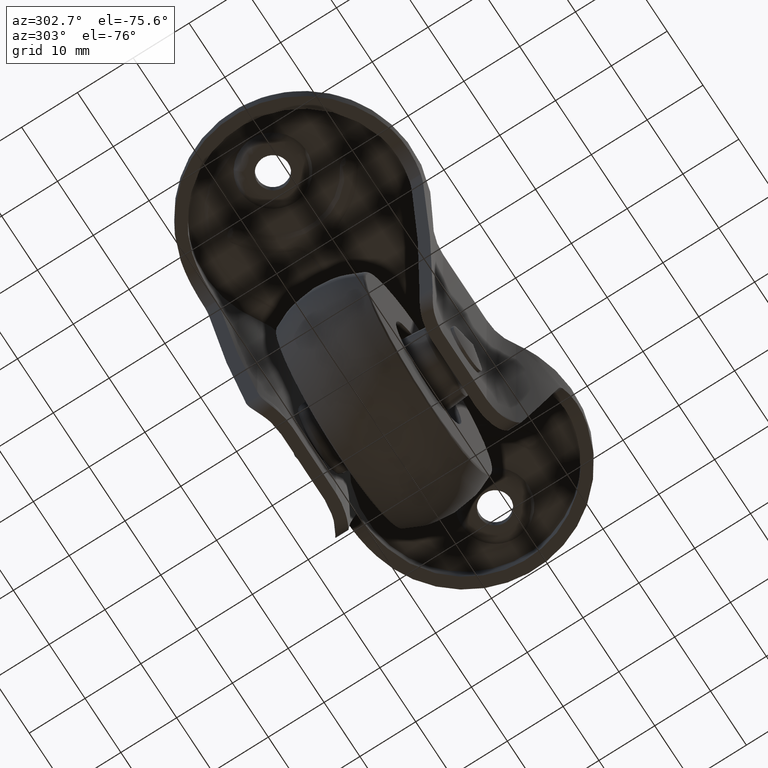
[diagram: clean part render]
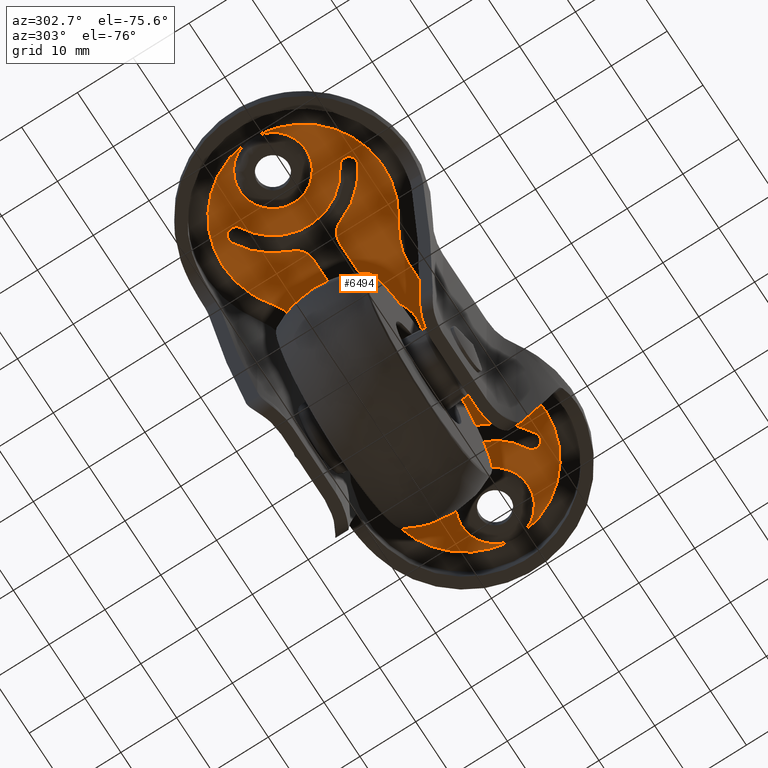
[diagram: same view with one face highlighted and labeled with its STEP entity id]
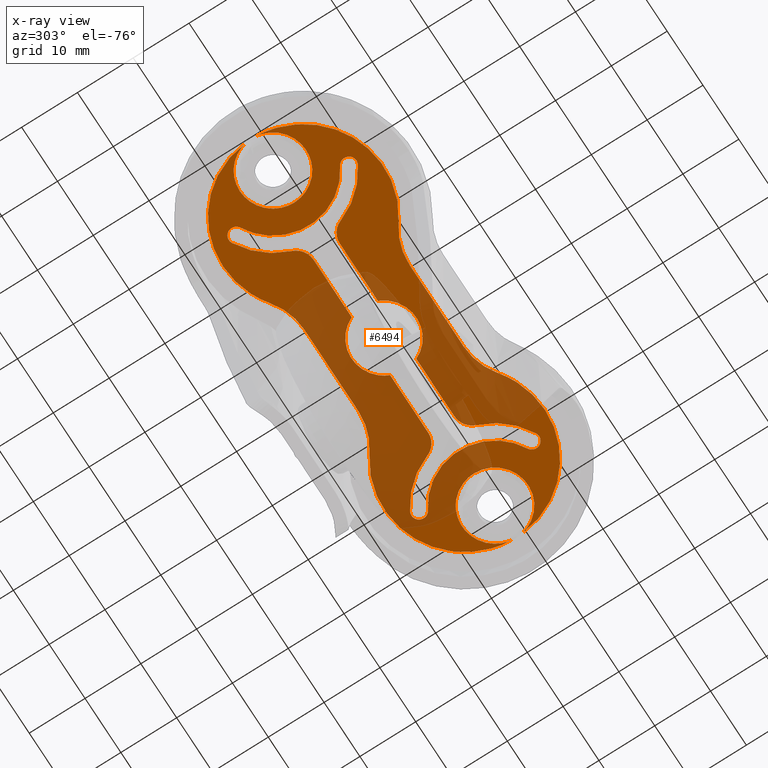
[diagram: x-ray of the same camera — body ghosted, the highlighted face saturated]
A machine part, auxiliary view. The second image highlights one B-rep face of the part: STEP entity #6494.
The next image is the same camera in x-ray: the body ghosted, the highlighted face saturated — about 46% of this face is hidden behind the body in this view.
In plain terms, the highlighted face is a freeform B-spline surface patch.
Its self-contained STEP definition (entity closure, byte-faithful):
#3911=CARTESIAN_POINT('',(-34.346638381598517,4.903883388314556,-2.200000000032716));
#3912=VERTEX_POINT('',#3911);
#3926=CARTESIAN_POINT('',(-36.874231720969362,-0.861082128416606,-2.200000000000000));
#3927=VERTEX_POINT('',#3926);
#3928=CARTESIAN_POINT('',(-34.346638381598524,4.903883388314556,-2.200000000032716));
#3929=CARTESIAN_POINT('',(-32.635031074759311,6.071963918333650,-2.200000000000001));
#3930=CARTESIAN_POINT('',(-30.568316302503131,5.921292927126343,-2.200000000000000));
#3931=CARTESIAN_POINT('',(-25.062992273584200,5.519934868680235,-2.200000000000000));
#3932=CARTESIAN_POINT('',(-25.062992273584189,0.0,-2.200000000000000));
#3933=CARTESIAN_POINT('',(-25.062992273584200,-5.519934868680235,-2.200000000000000));
#3934=CARTESIAN_POINT('',(-30.568316302503131,-5.921292927126343,-2.200000000000000));
#3935=CARTESIAN_POINT('',(-36.073640331422069,-6.322650985572449,-2.200000000000000));
#3936=CARTESIAN_POINT('',(-36.874231720969362,-0.861082128416602,-2.200000000000000));
#3944=(BOUNDED_CURVE()B_SPLINE_CURVE(2,(#3928,#3929,#3930,#3931,#3932,#3933,#3934,#3935,#3936),.UNSPECIFIED.,.F.,.U.)B_SPLINE_CURVE_WITH_KNOTS((3,2,2,2,3),(0.137311680913805,0.250000000000000,0.500000000000000,0.750000000000000,1.0),.UNSPECIFIED.)CURVE()GEOMETRIC_REPRESENTATION_ITEM()RATIONAL_B_SPLINE_CURVE((0.867479587277519,0.879361672072833,1.0,0.732362837369836,1.0,0.732362837369836,1.0,0.732362837369836,1.0))REPRESENTATION_ITEM(''));
#3945=EDGE_CURVE('',#3912,#3927,#3944,.T.);
#3947=CARTESIAN_POINT('',(-36.874231720969362,0.861082128416606,-2.200000000000000));
#3948=VERTEX_POINT('',#3947);
#3957=CARTESIAN_POINT('',(-36.573270165901349,2.046147697868406,-2.199999999978084));
#3958=VERTEX_POINT('',#3957);
#3959=CARTESIAN_POINT('',(-36.874231720969362,0.861082128416599,-2.200000000000000));
#3960=CARTESIAN_POINT('',(-36.785090981526793,1.469192948492580,-2.200000000000000));
#3961=CARTESIAN_POINT('',(-36.573270165901349,2.046147697868407,-2.199999999978084));
#3969=(BOUNDED_CURVE()B_SPLINE_CURVE(2,(#3959,#3960,#3961),.UNSPECIFIED.,.F.,.U.)B_SPLINE_CURVE_WITH_KNOTS((3,3),(0.0,0.036522267597159),.UNSPECIFIED.)CURVE()GEOMETRIC_REPRESENTATION_ITEM()RATIONAL_B_SPLINE_CURVE((1.0,0.960901135709907,0.933226104894596))REPRESENTATION_ITEM(''));
#3970=EDGE_CURVE('',#3948,#3958,#3969,.T.);
#4051=CARTESIAN_POINT('',(-36.573270165901349,2.046147697868406,-2.199999999978084));
#4052=CARTESIAN_POINT('',(-35.917731011704760,3.831696617025337,-2.200000000000001));
#4053=CARTESIAN_POINT('',(-34.346638381598524,4.903883388314556,-2.200000000032716));
#4061=(BOUNDED_CURVE()B_SPLINE_CURVE(2,(#4051,#4052,#4053),.UNSPECIFIED.,.F.,.U.)B_SPLINE_CURVE_WITH_KNOTS((3,3),(0.036522267597159,0.137311680913805),.UNSPECIFIED.)CURVE()GEOMETRIC_REPRESENTATION_ITEM()RATIONAL_B_SPLINE_CURVE((0.933226104894596,0.856852147226857,0.867479587277519))REPRESENTATION_ITEM(''));
#4062=EDGE_CURVE('',#3958,#3912,#4061,.T.);
#4122=CARTESIAN_POINT('',(28.328831657542040,5.302161863789421,-2.199999999988395));
#4123=VERTEX_POINT('',#4122);
#4137=CARTESIAN_POINT('',(36.874231720969000,0.861082128418889,-2.200000000000000));
#4138=VERTEX_POINT('',#4137);
#4139=CARTESIAN_POINT('',(28.328831657542040,5.302161863789421,-2.199999999988395));
#4140=CARTESIAN_POINT('',(29.386804474302348,5.835156436175389,-2.200000000000001));
#4141=CARTESIAN_POINT('',(30.568316302501980,5.921292927126259,-2.200000000000000));
#4142=CARTESIAN_POINT('',(36.073640331419760,6.322650985573358,-2.200000000000001));
#4143=CARTESIAN_POINT('',(36.874231720969007,0.861082128418892,-2.200000000000000));
#4151=(BOUNDED_CURVE()B_SPLINE_CURVE(2,(#4139,#4140,#4141,#4142,#4143),.UNSPECIFIED.,.F.,.U.)B_SPLINE_CURVE_WITH_KNOTS((3,2,3),(0.682067524614968,0.750000000000000,1.0),.UNSPECIFIED.)CURVE()GEOMETRIC_REPRESENTATION_ITEM()RATIONAL_B_SPLINE_CURVE((0.894073085266753,0.927274980150044,1.0,0.732362837369902,1.0))REPRESENTATION_ITEM(''));
#4152=EDGE_CURVE('',#4123,#4138,#4151,.T.);
#4154=CARTESIAN_POINT('',(36.874231720969000,-0.861082128418889,-2.200000000000000));
#4155=VERTEX_POINT('',#4154);
#4164=CARTESIAN_POINT('',(25.426729834078269,2.046147697793684,-2.199999999995812));
#4165=VERTEX_POINT('',#4164);
#4166=CARTESIAN_POINT('',(36.874231720969007,-0.861082128418891,-2.200000000000000));
#4167=CARTESIAN_POINT('',(36.073640331419760,-6.322650985573359,-2.200000000000001));
#4168=CARTESIAN_POINT('',(30.568316302501980,-5.921292927126259,-2.200000000000000));
#4169=CARTESIAN_POINT('',(25.062992273584189,-5.519934868679157,-2.200000000000001));
#4170=CARTESIAN_POINT('',(25.062992273584189,0.0,-2.200000000000000));
#4171=CARTESIAN_POINT('',(25.062992273584193,1.055404118401007,-2.200000000000000));
#4172=CARTESIAN_POINT('',(25.426729834078269,2.046147697793683,-2.199999999995812));
#4180=(BOUNDED_CURVE()B_SPLINE_CURVE(2,(#4166,#4167,#4168,#4169,#4170,#4171,#4172),.UNSPECIFIED.,.F.,.U.)B_SPLINE_CURVE_WITH_KNOTS((3,2,2,3),(0.0,0.250000000000000,0.500000000000000,0.561005164668083),.UNSPECIFIED.)CURVE()GEOMETRIC_REPRESENTATION_ITEM()RATIONAL_B_SPLINE_CURVE((1.0,0.732362837369902,1.0,0.732362837369902,1.0,0.934691003289809,0.901255495368518))REPRESENTATION_ITEM(''));
#4181=EDGE_CURVE('',#4155,#4165,#4180,.T.);
#4262=CARTESIAN_POINT('',(25.426729834078277,2.046147697793684,-2.199999999995812));
#4263=CARTESIAN_POINT('',(26.234824391781356,4.247225017094057,-2.200000000000000));
#4264=CARTESIAN_POINT('',(28.328831657542043,5.302161863789421,-2.199999999988395));
#4272=(BOUNDED_CURVE()B_SPLINE_CURVE(2,(#4262,#4263,#4264),.UNSPECIFIED.,.F.,.U.)B_SPLINE_CURVE_WITH_KNOTS((3,3),(0.561005164668083,0.682067524614968),.UNSPECIFIED.)CURVE()GEOMETRIC_REPRESENTATION_ITEM()RATIONAL_B_SPLINE_CURVE((0.901255495368518,0.834904039438559,0.894073085266753))REPRESENTATION_ITEM(''));
#4273=EDGE_CURVE('',#4165,#4123,#4272,.T.);
#4331=CARTESIAN_POINT('',(-24.855248196395301,-11.283445736817860,-2.200000000000000));
#4332=VERTEX_POINT('',#4331);
#4346=CARTESIAN_POINT('',(-26.848117439059429,-10.099505000288019,-2.200000000010625));
#4347=VERTEX_POINT('',#4346);
#4348=CARTESIAN_POINT('',(-24.855248196395301,-11.283445736817860,-2.200000000000000));
#4349=CARTESIAN_POINT('',(-25.538796700459322,-11.655693395529969,-2.200000000000000));
#4350=CARTESIAN_POINT('',(-26.202946867230558,-11.249846832402310,-2.200000000000000));
#4351=CARTESIAN_POINT('',(-26.848117438746637,-10.855598254021546,-2.200000000000000));
#4352=CARTESIAN_POINT('',(-26.848117439059433,-10.099505000288024,-2.200000000010625));
#4360=(BOUNDED_CURVE()B_SPLINE_CURVE(2,(#4348,#4349,#4350,#4351,#4352),.UNSPECIFIED.,.F.,.U.)B_SPLINE_CURVE_WITH_KNOTS((3,2,3),(0.0,0.333333333333333,0.658385415045323),.UNSPECIFIED.)CURVE()GEOMETRIC_REPRESENTATION_ITEM()RATIONAL_B_SPLINE_CURVE((1.0,0.866025403727843,1.0,0.869353835755636,0.993508517443174))REPRESENTATION_ITEM(''));
#4361=EDGE_CURVE('',#4332,#4347,#4360,.T.);
#4420=CARTESIAN_POINT('',(-26.144751828689600,-8.915564215204761,-2.200000000000000));
#4421=VERTEX_POINT('',#4420);
#4422=CARTESIAN_POINT('',(-26.848117439059433,-10.099505000288024,-2.200000000010625));
#4423=CARTESIAN_POINT('',(-26.848117439077029,-10.082702926419035,-2.200000000000001));
#4424=CARTESIAN_POINT('',(-26.847698683504120,-10.065906071363640,-2.200000000000000));
#4425=CARTESIAN_POINT('',(-26.828300333006432,-9.287811873452634,-2.200000000000000));
#4426=CARTESIAN_POINT('',(-26.144751828689600,-8.915564215204761,-2.200000000000000));
#4434=(BOUNDED_CURVE()B_SPLINE_CURVE(2,(#4422,#4423,#4424,#4425,#4426),.UNSPECIFIED.,.F.,.U.)B_SPLINE_CURVE_WITH_KNOTS((3,2,3),(0.658385415045323,0.666666666666667,1.0),.UNSPECIFIED.)CURVE()GEOMETRIC_REPRESENTATION_ITEM()RATIONAL_B_SPLINE_CURVE((0.993508517443174,0.996671567972207,1.0,0.866025403727843,1.0))REPRESENTATION_ITEM(''));
#4435=EDGE_CURVE('',#4347,#4421,#4434,.T.);
#4495=CARTESIAN_POINT('',(-26.144751827885202,8.915564214766771,-2.200000000000000));
#4496=VERTEX_POINT('',#4495);
#4510=CARTESIAN_POINT('',(-26.848117438806430,10.099505000645159,-2.200000000268742));
#4511=VERTEX_POINT('',#4510);
#4512=CARTESIAN_POINT('',(-26.144751827885202,8.915564214766771,-2.200000000000000));
#4513=CARTESIAN_POINT('',(-26.828300332454933,9.287811872550268,-2.200000000000001));
#4514=CARTESIAN_POINT('',(-26.847698683481291,10.065906070448110,-2.200000000000000));
#4515=CARTESIAN_POINT('',(-26.848117439085925,10.082702926318067,-2.200000000000001));
#4516=CARTESIAN_POINT('',(-26.848117438806430,10.099505000645152,-2.200000000268742));
#4524=(BOUNDED_CURVE()B_SPLINE_CURVE(2,(#4512,#4513,#4514,#4515,#4516),.UNSPECIFIED.,.F.,.U.)B_SPLINE_CURVE_WITH_KNOTS((3,2,3),(0.0,0.333333333333333,0.341614585355078),.UNSPECIFIED.)CURVE()GEOMETRIC_REPRESENTATION_ITEM()RATIONAL_B_SPLINE_CURVE((1.0,0.866025403727839,1.0,0.996671567811276,0.993508517137305))REPRESENTATION_ITEM(''));
#4525=EDGE_CURVE('',#4496,#4511,#4524,.T.);
#4594=CARTESIAN_POINT('',(-24.855248197199700,11.283445737256001,-2.200000000000000));
#4595=VERTEX_POINT('',#4594);
#4596=CARTESIAN_POINT('',(-26.848117438806430,10.099505000645152,-2.200000000268742));
#4597=CARTESIAN_POINT('',(-26.848117438346200,10.855598253664365,-2.200000000000000));
#4598=CARTESIAN_POINT('',(-26.202946868012130,11.249846831924859,-2.200000000000000));
#4599=CARTESIAN_POINT('',(-25.538796701516610,11.655693395503761,-2.200000000000001));
#4600=CARTESIAN_POINT('',(-24.855248197199700,11.283445737256001,-2.200000000000000));
#4608=(BOUNDED_CURVE()B_SPLINE_CURVE(2,(#4596,#4597,#4598,#4599,#4600),.UNSPECIFIED.,.F.,.U.)B_SPLINE_CURVE_WITH_KNOTS((3,2,3),(0.341614585355078,0.666666666666667,1.0),.UNSPECIFIED.)CURVE()GEOMETRIC_REPRESENTATION_ITEM()RATIONAL_B_SPLINE_CURVE((0.993508517137305,0.869353835916563,1.0,0.866025403727839,1.0))REPRESENTATION_ITEM(''));
#4609=EDGE_CURVE('',#4511,#4595,#4608,.T.);
#4693=CARTESIAN_POINT('',(-13.860000052416460,-11.520000039312240,-2.200000000000000));
#4694=VERTEX_POINT('',#4693);
#4695=CARTESIAN_POINT('',(-13.860000052416460,-11.520000039312240,-2.200000000000000));
#4696=CARTESIAN_POINT('',(-20.743776223008652,-16.682832118316757,-2.200000000000000));
#4697=CARTESIAN_POINT('',(-28.551734153573658,-13.066618297573021,-2.200000000000000));
#4698=CARTESIAN_POINT('',(-36.359692084138679,-9.450404476829279,-2.200000000000000));
#4699=CARTESIAN_POINT('',(-36.874231720969348,-0.861082128416608,-2.200000000000000));
#4707=(BOUNDED_CURVE()B_SPLINE_CURVE(2,(#4695,#4696,#4697,#4698,#4699),.UNSPECIFIED.,.F.,.U.)B_SPLINE_CURVE_WITH_KNOTS((3,2,3),(0.0,0.500000000000000,1.0),.UNSPECIFIED.)CURVE()GEOMETRIC_REPRESENTATION_ITEM()RATIONAL_B_SPLINE_CURVE((1.0,0.858419376828368,1.0,0.858419376828368,1.0))REPRESENTATION_ITEM(''));
#4708=EDGE_CURVE('',#4694,#3927,#4707,.T.);
#4744=CARTESIAN_POINT('',(-13.859999921375220,11.519999941031539,-2.200000000000000));
#4745=VERTEX_POINT('',#4744);
#4759=CARTESIAN_POINT('',(-36.874231720969348,0.861082128416604,-2.200000000000000));
#4760=CARTESIAN_POINT('',(-36.359692080815613,9.450404532302155,-2.200000000000000));
#4761=CARTESIAN_POINT('',(-28.551734079256640,13.066618331992551,-2.200000000000000));
#4762=CARTESIAN_POINT('',(-20.743776077697678,16.682832131682940,-2.200000000000000));
#4763=CARTESIAN_POINT('',(-13.859999921375220,11.519999941031539,-2.200000000000000));
#4771=(BOUNDED_CURVE()B_SPLINE_CURVE(2,(#4759,#4760,#4761,#4762,#4763),.UNSPECIFIED.,.F.,.U.)B_SPLINE_CURVE_WITH_KNOTS((3,2,3),(0.0,0.500000000000000,1.0),.UNSPECIFIED.)CURVE()GEOMETRIC_REPRESENTATION_ITEM()RATIONAL_B_SPLINE_CURVE((1.0,0.858419375369659,1.0,0.858419375369659,1.0))REPRESENTATION_ITEM(''));
#4772=EDGE_CURVE('',#3948,#4745,#4771,.T.);
#4794=CARTESIAN_POINT('',(-7.500000000000000,-9.400000000000000,-2.200000000000000));
#4795=VERTEX_POINT('',#4794);
#4825=CARTESIAN_POINT('',(-7.500000000000000,-9.400000000000000,-2.200000000000000));
#4826=CARTESIAN_POINT('',(-11.033333369733622,-9.400000000000000,-2.200000000000001));
#4827=CARTESIAN_POINT('',(-13.860000052416460,-11.520000039312240,-2.200000000000000));
#4835=(BOUNDED_CURVE()B_SPLINE_CURVE(2,(#4825,#4826,#4827),.UNSPECIFIED.,.F.,.U.)CURVE()GEOMETRIC_REPRESENTATION_ITEM()QUASI_UNIFORM_CURVE()RATIONAL_B_SPLINE_CURVE((1.0,0.948683297073183,1.0))REPRESENTATION_ITEM(''));
#4836=EDGE_CURVE('',#4795,#4694,#4835,.T.);
#4860=CARTESIAN_POINT('',(-7.500000000000000,9.400000000000119,-2.200000000000000));
#4861=VERTEX_POINT('',#4860);
#4875=CARTESIAN_POINT('',(-13.859999921375220,11.519999941031539,-2.200000000000000));
#4876=CARTESIAN_POINT('',(-11.033333278732828,9.400000000000000,-2.200000000000001));
#4877=CARTESIAN_POINT('',(-7.500000000000000,9.400000000000119,-2.200000000000000));
#4885=(BOUNDED_CURVE()B_SPLINE_CURVE(2,(#4875,#4876,#4877),.UNSPECIFIED.,.F.,.U.)CURVE()GEOMETRIC_REPRESENTATION_ITEM()QUASI_UNIFORM_CURVE()RATIONAL_B_SPLINE_CURVE((1.0,0.948683299516512,1.0))REPRESENTATION_ITEM(''));
#4886=EDGE_CURVE('',#4745,#4861,#4885,.T.);
#4919=CARTESIAN_POINT('',(7.500000000000000,-9.399999999999890,-2.200000000000000));
#4920=VERTEX_POINT('',#4919);
#4942=CARTESIAN_POINT('',(7.500000000000000,-9.399999999999890,-2.200000000000000));
#4943=CARTESIAN_POINT('',(-7.500000000000000,-9.400000000000000,-2.200000000000000));
#4944=QUASI_UNIFORM_CURVE('',1,(#4942,#4943),.UNSPECIFIED.,.F.,.U.);
#4945=EDGE_CURVE('',#4920,#4795,#4944,.T.);
#4966=CARTESIAN_POINT('',(7.500000000000000,9.400000000000111,-2.200000000000000));
#4967=VERTEX_POINT('',#4966);
#4981=CARTESIAN_POINT('',(-7.500000000000000,9.400000000000119,-2.200000000000000));
#4982=CARTESIAN_POINT('',(7.500000000000000,9.400000000000111,-2.200000000000000));
#4983=QUASI_UNIFORM_CURVE('',1,(#4981,#4982),.UNSPECIFIED.,.F.,.U.);
#4984=EDGE_CURVE('',#4861,#4967,#4983,.T.);
#5012=CARTESIAN_POINT('',(13.859999928792520,-11.519999946594540,-2.200000000000000));
#5013=VERTEX_POINT('',#5012);
#5043=CARTESIAN_POINT('',(13.859999928792520,-11.519999946594540,-2.200000000000000));
#5044=CARTESIAN_POINT('',(11.033333283883744,-9.400000000000000,-2.200000000000000));
#5045=CARTESIAN_POINT('',(7.500000000000000,-9.399999999999890,-2.200000000000000));
#5053=(BOUNDED_CURVE()B_SPLINE_CURVE(2,(#5043,#5044,#5045),.UNSPECIFIED.,.F.,.U.)CURVE()GEOMETRIC_REPRESENTATION_ITEM()QUASI_UNIFORM_CURVE()RATIONAL_B_SPLINE_CURVE((1.0,0.948683299378212,1.0))REPRESENTATION_ITEM(''));
#5054=EDGE_CURVE('',#5013,#4920,#5053,.T.);
#5078=CARTESIAN_POINT('',(13.860000052416460,11.520000039312460,-2.200000000000000));
#5079=VERTEX_POINT('',#5078);
#5093=CARTESIAN_POINT('',(7.500000000000000,9.400000000000111,-2.200000000000000));
#5094=CARTESIAN_POINT('',(11.033333369733686,9.400000000000000,-2.199999999999999));
#5095=CARTESIAN_POINT('',(13.860000052416460,11.520000039312460,-2.200000000000000));
#5103=(BOUNDED_CURVE()B_SPLINE_CURVE(2,(#5093,#5094,#5095),.UNSPECIFIED.,.F.,.U.)CURVE()GEOMETRIC_REPRESENTATION_ITEM()QUASI_UNIFORM_CURVE()RATIONAL_B_SPLINE_CURVE((1.0,0.948683297073182,1.0))REPRESENTATION_ITEM(''));
#5104=EDGE_CURVE('',#4967,#5079,#5103,.T.);
#5153=CARTESIAN_POINT('',(13.860000052416460,11.520000039312460,-2.200000000000000));
#5154=CARTESIAN_POINT('',(20.743776223008144,16.682832118316284,-2.200000000000001));
#5155=CARTESIAN_POINT('',(28.551734153572689,13.066618297573470,-2.200000000000000));
#5156=CARTESIAN_POINT('',(36.359692084137222,9.450404476830663,-2.200000000000001));
#5157=CARTESIAN_POINT('',(36.874231720969000,0.861082128418889,-2.200000000000000));
#5165=(BOUNDED_CURVE()B_SPLINE_CURVE(2,(#5153,#5154,#5155,#5156,#5157),.UNSPECIFIED.,.F.,.U.)B_SPLINE_CURVE_WITH_KNOTS((3,2,3),(0.0,0.500000000000000,1.0),.UNSPECIFIED.)CURVE()GEOMETRIC_REPRESENTATION_ITEM()RATIONAL_B_SPLINE_CURVE((1.0,0.858419376828390,1.0,0.858419376828390,1.0))REPRESENTATION_ITEM(''));
#5166=EDGE_CURVE('',#5079,#4138,#5165,.T.);
#5187=CARTESIAN_POINT('',(36.874231720969000,-0.861082128418889,-2.200000000000000));
#5188=CARTESIAN_POINT('',(36.359692081002230,-9.450404529163663,-2.200000000000000));
#5189=CARTESIAN_POINT('',(28.551734083462161,-13.066618330044790,-2.200000000000000));
#5190=CARTESIAN_POINT('',(20.743776085922072,-16.682832130925913,-2.200000000000000));
#5191=CARTESIAN_POINT('',(13.859999928792520,-11.519999946594540,-2.200000000000000));
#5199=(BOUNDED_CURVE()B_SPLINE_CURVE(2,(#5187,#5188,#5189,#5190,#5191),.UNSPECIFIED.,.F.,.U.)B_SPLINE_CURVE_WITH_KNOTS((3,2,3),(0.0,0.500000000000000,1.0),.UNSPECIFIED.)CURVE()GEOMETRIC_REPRESENTATION_ITEM()RATIONAL_B_SPLINE_CURVE((1.0,0.858419375452246,1.0,0.858419375452246,1.0))REPRESENTATION_ITEM(''));
#5200=EDGE_CURVE('',#4155,#5013,#5199,.T.);
#5222=CARTESIAN_POINT('',(24.855248197190150,-11.283445737250720,-2.200000000000000));
#5223=VERTEX_POINT('',#5222);
#5239=CARTESIAN_POINT('',(18.934831523981050,-4.416540381847505,-2.200000000000000));
#5240=VERTEX_POINT('',#5239);
#5241=CARTESIAN_POINT('',(24.855248197190150,-11.283445737250720,-2.200000000000000));
#5242=CARTESIAN_POINT('',(20.600295324374532,-8.966278597648012,-2.200000000000000));
#5243=CARTESIAN_POINT('',(18.934831523981050,-4.416540381847505,-2.200000000000000));
#5251=(BOUNDED_CURVE()B_SPLINE_CURVE(2,(#5241,#5242,#5243),.UNSPECIFIED.,.F.,.U.)CURVE()GEOMETRIC_REPRESENTATION_ITEM()QUASI_UNIFORM_CURVE()RATIONAL_B_SPLINE_CURVE((1.0,0.935682532368450,1.0))REPRESENTATION_ITEM(''));
#5252=EDGE_CURVE('',#5223,#5240,#5251,.T.);
#5328=CARTESIAN_POINT('',(26.144751827966651,-8.915564214811132,-2.200000000000000));
#5329=VERTEX_POINT('',#5328);
#5345=CARTESIAN_POINT('',(26.144751827966651,-8.915564214811132,-2.200000000000000));
#5346=CARTESIAN_POINT('',(26.828300332494830,-9.287811872632863,-2.200000000000000));
#5347=CARTESIAN_POINT('',(26.847698683482921,-10.065906070513440,-2.200000000000000));
#5348=CARTESIAN_POINT('',(26.867097034471016,-10.844000268394014,-2.200000000000000));
#5349=CARTESIAN_POINT('',(26.202946867979559,-11.249846831944620,-2.200000000000000));
#5350=CARTESIAN_POINT('',(25.538796701488092,-11.655693395495222,-2.200000000000000));
#5351=CARTESIAN_POINT('',(24.855248197190150,-11.283445737250720,-2.200000000000000));
#5359=(BOUNDED_CURVE()B_SPLINE_CURVE(2,(#5345,#5346,#5347,#5348,#5349,#5350,#5351),.UNSPECIFIED.,.F.,.U.)B_SPLINE_CURVE_WITH_KNOTS((3,2,2,3),(0.0,0.333333333333333,0.666666666666667,1.0),.UNSPECIFIED.)CURVE()GEOMETRIC_REPRESENTATION_ITEM()RATIONAL_B_SPLINE_CURVE((1.0,0.866025403732905,1.0,0.866025403732905,1.0,0.866025403732905,1.0))REPRESENTATION_ITEM(''));
#5360=EDGE_CURVE('',#5329,#5223,#5359,.T.);
#5401=CARTESIAN_POINT('',(15.975020999999900,-2.348117439069735,-2.200000000000000));
#5402=VERTEX_POINT('',#5401);
#5403=CARTESIAN_POINT('',(18.934831523981050,-4.416540381847505,-2.200000000000000));
#5404=CARTESIAN_POINT('',(18.177670747751463,-2.348117439069735,-2.200000000000000));
#5405=CARTESIAN_POINT('',(15.975020999999900,-2.348117439069735,-2.200000000000000));
#5413=(BOUNDED_CURVE()B_SPLINE_CURVE(2,(#5403,#5404,#5405),.UNSPECIFIED.,.F.,.U.)CURVE()GEOMETRIC_REPRESENTATION_ITEM()QUASI_UNIFORM_CURVE()RATIONAL_B_SPLINE_CURVE((1.0,0.819679817504569,1.0))REPRESENTATION_ITEM(''));
#5414=EDGE_CURVE('',#5240,#5402,#5413,.T.);
#5470=CARTESIAN_POINT('',(26.144751828701651,8.915564215211482,-2.200000000000000));
#5471=VERTEX_POINT('',#5470);
#5487=CARTESIAN_POINT('',(26.144751828701651,8.915564215211482,-2.200000000000000));
#5488=CARTESIAN_POINT('',(20.848117439318479,6.031116962397030,-2.200000000000001));
#5489=CARTESIAN_POINT('',(20.848117439069860,4.184848E-010,-2.200000000000000));
#5490=CARTESIAN_POINT('',(20.848117438821241,-6.031116961560065,-2.200000000000001));
#5491=CARTESIAN_POINT('',(26.144751827966651,-8.915564214811132,-2.200000000000000));
#5499=(BOUNDED_CURVE()B_SPLINE_CURVE(2,(#5487,#5488,#5489,#5490,#5491),.UNSPECIFIED.,.F.,.U.)B_SPLINE_CURVE_WITH_KNOTS((3,2,3),(0.0,0.500000000000000,1.0),.UNSPECIFIED.)CURVE()GEOMETRIC_REPRESENTATION_ITEM()RATIONAL_B_SPLINE_CURVE((1.0,0.859726952973941,1.0,0.859726952973941,1.0))REPRESENTATION_ITEM(''));
#5500=EDGE_CURVE('',#5471,#5329,#5499,.T.);
#5536=CARTESIAN_POINT('',(5.356008035233840,-2.348117439069730,-2.200000000000000));
#5537=VERTEX_POINT('',#5536);
#5538=CARTESIAN_POINT('',(15.975020999999900,-2.348117439069735,-2.200000000000000));
#5539=CARTESIAN_POINT('',(5.356008035233840,-2.348117439069730,-2.200000000000000));
#5540=QUASI_UNIFORM_CURVE('',1,(#5538,#5539),.UNSPECIFIED.,.F.,.U.);
#5541=EDGE_CURVE('',#5402,#5537,#5540,.T.);
#5615=CARTESIAN_POINT('',(24.855248196476751,11.283445736862300,-2.200000000000000));
#5616=VERTEX_POINT('',#5615);
#5632=CARTESIAN_POINT('',(24.855248196476751,11.283445736862300,-2.200000000000000));
#5633=CARTESIAN_POINT('',(25.538796700545575,11.655693395516131,-2.200000000000001));
#5634=CARTESIAN_POINT('',(26.202946867279401,11.249846832372610,-2.200000000000000));
#5635=CARTESIAN_POINT('',(26.867097034013227,10.844000269229083,-2.200000000000001));
#5636=CARTESIAN_POINT('',(26.847698683503580,10.065906071342040,-2.200000000000000));
#5637=CARTESIAN_POINT('',(26.828300332993930,9.287811873454990,-2.200000000000001));
#5638=CARTESIAN_POINT('',(26.144751828701651,8.915564215211482,-2.200000000000000));
#5646=(BOUNDED_CURVE()B_SPLINE_CURVE(2,(#5632,#5633,#5634,#5635,#5636,#5637,#5638),.UNSPECIFIED.,.F.,.U.)B_SPLINE_CURVE_WITH_KNOTS((3,2,2,3),(0.0,0.333333333333333,0.666666666666667,1.0),.UNSPECIFIED.)CURVE()GEOMETRIC_REPRESENTATION_ITEM()RATIONAL_B_SPLINE_CURVE((1.0,0.866025403734422,1.0,0.866025403734422,1.0,0.866025403734422,1.0))REPRESENTATION_ITEM(''));
#5647=EDGE_CURVE('',#5616,#5471,#5646,.T.);
#5694=CARTESIAN_POINT('',(-5.356008035233840,-2.348117439069735,-2.200000000000000));
#5695=VERTEX_POINT('',#5694);
#5696=CARTESIAN_POINT('',(5.356008035233844,-2.348117439069734,-2.200000000000000));
#5697=CARTESIAN_POINT('',(3.821579598480104,-5.848117439069850,-2.200000000000000));
#5698=CARTESIAN_POINT('',(0.0,-5.848117439069850,-2.200000000000000));
#5699=CARTESIAN_POINT('',(-3.821579598480100,-5.848117439069850,-2.200000000000000));
#5700=CARTESIAN_POINT('',(-5.356008035233842,-2.348117439069737,-2.200000000000000));
#5708=(BOUNDED_CURVE()B_SPLINE_CURVE(2,(#5696,#5697,#5698,#5699,#5700),.UNSPECIFIED.,.F.,.U.)B_SPLINE_CURVE_WITH_KNOTS((3,2,3),(0.0,0.500000000000000,1.0),.UNSPECIFIED.)CURVE()GEOMETRIC_REPRESENTATION_ITEM()RATIONAL_B_SPLINE_CURVE((1.0,0.837113136515447,1.0,0.837113136515447,1.0))REPRESENTATION_ITEM(''));
#5709=EDGE_CURVE('',#5537,#5695,#5708,.T.);
#5767=CARTESIAN_POINT('',(18.934831527370800,4.416540391107695,-2.200000000000000));
#5768=VERTEX_POINT('',#5767);
#5784=CARTESIAN_POINT('',(18.934831527370800,4.416540391107695,-2.200000000000000));
#5785=CARTESIAN_POINT('',(20.600295329160907,8.966278599905797,-2.200000000000000));
#5786=CARTESIAN_POINT('',(24.855248196476751,11.283445736862300,-2.200000000000000));
#5794=(BOUNDED_CURVE()B_SPLINE_CURVE(2,(#5784,#5785,#5786),.UNSPECIFIED.,.F.,.U.)CURVE()GEOMETRIC_REPRESENTATION_ITEM()QUASI_UNIFORM_CURVE()RATIONAL_B_SPLINE_CURVE((1.0,0.935682532515009,1.0))REPRESENTATION_ITEM(''));
#5795=EDGE_CURVE('',#5768,#5616,#5794,.T.);
#5829=CARTESIAN_POINT('',(-15.975021000000201,-2.348117439069735,-2.200000000000000));
#5830=VERTEX_POINT('',#5829);
#5831=CARTESIAN_POINT('',(-5.356008035233840,-2.348117439069735,-2.200000000000000));
#5832=CARTESIAN_POINT('',(-15.975021000000201,-2.348117439069735,-2.200000000000000));
#5833=QUASI_UNIFORM_CURVE('',1,(#5831,#5832),.UNSPECIFIED.,.F.,.U.);
#5834=EDGE_CURVE('',#5695,#5830,#5833,.T.);
#5876=CARTESIAN_POINT('',(15.975020999999900,2.348117439069960,-2.200000000000000));
#5877=VERTEX_POINT('',#5876);
#5893=CARTESIAN_POINT('',(15.975020999999900,2.348117439069955,-2.200000000000000));
#5894=CARTESIAN_POINT('',(18.177670755089810,2.348117439069956,-2.200000000000000));
#5895=CARTESIAN_POINT('',(18.934831527370800,4.416540391107695,-2.200000000000000));
#5903=(BOUNDED_CURVE()B_SPLINE_CURVE(2,(#5893,#5894,#5895),.UNSPECIFIED.,.F.,.U.)CURVE()GEOMETRIC_REPRESENTATION_ITEM()QUASI_UNIFORM_CURVE()RATIONAL_B_SPLINE_CURVE((1.0,0.819679816608511,1.0))REPRESENTATION_ITEM(''));
#5904=EDGE_CURVE('',#5877,#5768,#5903,.T.);
#5941=CARTESIAN_POINT('',(-18.934831527410950,-4.416540391217005,-2.200000000000000));
#5942=VERTEX_POINT('',#5941);
#5943=CARTESIAN_POINT('',(-15.975021000000201,-2.348117439069735,-2.200000000000000));
#5944=CARTESIAN_POINT('',(-18.177670755176852,-2.348117439069735,-2.200000000000000));
#5945=CARTESIAN_POINT('',(-18.934831527410950,-4.416540391217005,-2.200000000000000));
#5953=(BOUNDED_CURVE()B_SPLINE_CURVE(2,(#5943,#5944,#5945),.UNSPECIFIED.,.F.,.U.)CURVE()GEOMETRIC_REPRESENTATION_ITEM()QUASI_UNIFORM_CURVE()RATIONAL_B_SPLINE_CURVE((1.0,0.819679816597920,1.0))REPRESENTATION_ITEM(''));
#5954=EDGE_CURVE('',#5830,#5942,#5953,.T.);
#6001=CARTESIAN_POINT('',(5.356008035233740,2.348117439069960,-2.200000000000000));
#6002=VERTEX_POINT('',#6001);
#6024=CARTESIAN_POINT('',(5.356008035233740,2.348117439069960,-2.200000000000000));
#6025=CARTESIAN_POINT('',(15.975020999999900,2.348117439069960,-2.200000000000000));
#6026=QUASI_UNIFORM_CURVE('',1,(#6024,#6025),.UNSPECIFIED.,.F.,.U.);
#6027=EDGE_CURVE('',#6002,#5877,#6026,.T.);
#6056=CARTESIAN_POINT('',(-18.934831527410950,-4.416540391217005,-2.200000000000000));
#6057=CARTESIAN_POINT('',(-20.600295329201106,-8.966278599887843,-2.200000000000001));
#6058=CARTESIAN_POINT('',(-24.855248196395301,-11.283445736817860,-2.200000000000000));
#6066=(BOUNDED_CURVE()B_SPLINE_CURVE(2,(#6056,#6057,#6058),.UNSPECIFIED.,.F.,.U.)CURVE()GEOMETRIC_REPRESENTATION_ITEM()QUASI_UNIFORM_CURVE()RATIONAL_B_SPLINE_CURVE((1.0,0.935682532517883,1.0))REPRESENTATION_ITEM(''));
#6067=EDGE_CURVE('',#5942,#4332,#6066,.T.);
#6109=CARTESIAN_POINT('',(-5.356008035233740,2.348117439069960,-2.200000000000000));
#6110=VERTEX_POINT('',#6109);
#6132=CARTESIAN_POINT('',(-5.356008035233745,2.348117439069959,-2.200000000000000));
#6133=CARTESIAN_POINT('',(-3.821579598479927,5.848117439069850,-2.200000000000000));
#6134=CARTESIAN_POINT('',(0.0,5.848117439069850,-2.200000000000000));
#6135=CARTESIAN_POINT('',(3.821579598479923,5.848117439069850,-2.200000000000000));
#6136=CARTESIAN_POINT('',(5.356008035233743,2.348117439069963,-2.200000000000000));
#6144=(BOUNDED_CURVE()B_SPLINE_CURVE(2,(#6132,#6133,#6134,#6135,#6136),.UNSPECIFIED.,.F.,.U.)B_SPLINE_CURVE_WITH_KNOTS((3,2,3),(0.0,0.500000000000000,1.0),.UNSPECIFIED.)CURVE()GEOMETRIC_REPRESENTATION_ITEM()RATIONAL_B_SPLINE_CURVE((1.0,0.837113136515459,1.0,0.837113136515459,1.0))REPRESENTATION_ITEM(''));
#6145=EDGE_CURVE('',#6110,#6002,#6144,.T.);
#6180=CARTESIAN_POINT('',(-15.975021000000201,2.348117439069935,-2.200000000000000));
#6181=VERTEX_POINT('',#6180);
#6197=CARTESIAN_POINT('',(-15.975021000000201,2.348117439069935,-2.200000000000000));
#6198=CARTESIAN_POINT('',(-5.356008035233740,2.348117439069960,-2.200000000000000));
#6199=QUASI_UNIFORM_CURVE('',1,(#6197,#6198),.UNSPECIFIED.,.F.,.U.);
#6200=EDGE_CURVE('',#6181,#6110,#6199,.T.);
#6235=CARTESIAN_POINT('',(-26.144751828689600,-8.915564215204761,-2.200000000000000));
#6236=CARTESIAN_POINT('',(-20.848117439341920,-6.031116962400467,-2.200000000000001));
#6237=CARTESIAN_POINT('',(-20.848117439069860,-4.579586E-010,-2.200000000000000));
#6238=CARTESIAN_POINT('',(-20.848117438797793,6.031116961484550,-2.200000000000001));
#6239=CARTESIAN_POINT('',(-26.144751827885202,8.915564214766771,-2.200000000000000));
#6247=(BOUNDED_CURVE()B_SPLINE_CURVE(2,(#6235,#6236,#6237,#6238,#6239),.UNSPECIFIED.,.F.,.U.)B_SPLINE_CURVE_WITH_KNOTS((3,2,3),(0.0,0.500000000000000,1.0),.UNSPECIFIED.)CURVE()GEOMETRIC_REPRESENTATION_ITEM()RATIONAL_B_SPLINE_CURVE((1.0,0.859726952975281,1.0,0.859726952975281,1.0))REPRESENTATION_ITEM(''));
#6248=EDGE_CURVE('',#4421,#4496,#6247,.T.);
#6286=CARTESIAN_POINT('',(-18.934831435043300,4.416540413865874,-2.200000000000000));
#6287=VERTEX_POINT('',#6286);
#6303=CARTESIAN_POINT('',(-18.934831435043300,4.416540413865874,-2.200000000000000));
#6304=CARTESIAN_POINT('',(-18.177670747375615,2.348117439069956,-2.200000000000001));
#6305=CARTESIAN_POINT('',(-15.975021000000201,2.348117439069955,-2.200000000000000));
#6313=(BOUNDED_CURVE()B_SPLINE_CURVE(2,(#6303,#6304,#6305),.UNSPECIFIED.,.F.,.U.)CURVE()GEOMETRIC_REPRESENTATION_ITEM()QUASI_UNIFORM_CURVE()RATIONAL_B_SPLINE_CURVE((1.0,0.819679817550500,1.0))REPRESENTATION_ITEM(''));
#6314=EDGE_CURVE('',#6287,#6181,#6313,.T.);
#6351=CARTESIAN_POINT('',(-24.855248197199700,11.283445737256001,-2.200000000000000));
#6352=CARTESIAN_POINT('',(-20.600295324123312,8.966278597515888,-2.200000000000000));
#6353=CARTESIAN_POINT('',(-18.934831435043279,4.416540413865883,-2.200000000000000));
#6361=(BOUNDED_CURVE()B_SPLINE_CURVE(2,(#6351,#6352,#6353),.UNSPECIFIED.,.F.,.U.)CURVE()GEOMETRIC_REPRESENTATION_ITEM()QUASI_UNIFORM_CURVE()RATIONAL_B_SPLINE_CURVE((1.0,0.935682532361364,1.0))REPRESENTATION_ITEM(''));
#6362=EDGE_CURVE('',#4595,#6287,#6361,.T.);
#6447=CARTESIAN_POINT('',(-40.557969403848773,-15.838496663630931,-2.200000000000000));
#6448=CARTESIAN_POINT('',(40.557969403848411,-15.838496663630931,-2.200000000000000));
#6449=CARTESIAN_POINT('',(-40.557969403848773,15.838496921140370,-2.200000000000000));
#6450=CARTESIAN_POINT('',(40.557969403848411,15.838496921140370,-2.200000000000000));
#6451=B_SPLINE_SURFACE_WITH_KNOTS('',1,1,((#6447,#6449),(#6448,#6450)),.UNSPECIFIED.,.F.,.F.,.U.,(2,2),(2,2),(0.0,81.115938807697177),(0.0,31.676993584771310),.UNSPECIFIED.);
#6452=ORIENTED_EDGE('',*,*,#4836,.T.);
#6453=ORIENTED_EDGE('',*,*,#4708,.T.);
#6454=ORIENTED_EDGE('',*,*,#3945,.F.);
#6455=ORIENTED_EDGE('',*,*,#4062,.F.);
#6456=ORIENTED_EDGE('',*,*,#3970,.F.);
#6457=ORIENTED_EDGE('',*,*,#4772,.T.);
#6458=ORIENTED_EDGE('',*,*,#4886,.T.);
#6459=ORIENTED_EDGE('',*,*,#4984,.T.);
#6460=ORIENTED_EDGE('',*,*,#5104,.T.);
#6461=ORIENTED_EDGE('',*,*,#5166,.T.);
#6462=ORIENTED_EDGE('',*,*,#4152,.F.);
#6463=ORIENTED_EDGE('',*,*,#4273,.F.);
#6464=ORIENTED_EDGE('',*,*,#4181,.F.);
#6465=ORIENTED_EDGE('',*,*,#5200,.T.);
#6466=ORIENTED_EDGE('',*,*,#5054,.T.);
#6467=ORIENTED_EDGE('',*,*,#4945,.T.);
#6468=EDGE_LOOP('',(#6452,#6453,#6454,#6455,#6456,#6457,#6458,#6459,#6460,#6461,#6462,#6463,#6464,#6465,#6466,#6467));
#6469=FACE_OUTER_BOUND('',#6468,.T.);
#6470=ORIENTED_EDGE('',*,*,#5252,.F.);
#6471=ORIENTED_EDGE('',*,*,#5360,.F.);
#6472=ORIENTED_EDGE('',*,*,#5500,.F.);
#6473=ORIENTED_EDGE('',*,*,#5647,.F.);
#6474=ORIENTED_EDGE('',*,*,#5795,.F.);
#6475=ORIENTED_EDGE('',*,*,#5904,.F.);
#6476=ORIENTED_EDGE('',*,*,#6027,.F.);
#6477=ORIENTED_EDGE('',*,*,#6145,.F.);
#6478=ORIENTED_EDGE('',*,*,#6200,.F.);
#6479=ORIENTED_EDGE('',*,*,#6314,.F.);
#6480=ORIENTED_EDGE('',*,*,#6362,.F.);
#6481=ORIENTED_EDGE('',*,*,#4609,.F.);
#6482=ORIENTED_EDGE('',*,*,#4525,.F.);
#6483=ORIENTED_EDGE('',*,*,#6248,.F.);
#6484=ORIENTED_EDGE('',*,*,#4435,.F.);
#6485=ORIENTED_EDGE('',*,*,#4361,.F.);
#6486=ORIENTED_EDGE('',*,*,#6067,.F.);
#6487=ORIENTED_EDGE('',*,*,#5954,.F.);
#6488=ORIENTED_EDGE('',*,*,#5834,.F.);
#6489=ORIENTED_EDGE('',*,*,#5709,.F.);
#6490=ORIENTED_EDGE('',*,*,#5541,.F.);
#6491=ORIENTED_EDGE('',*,*,#5414,.F.);
#6492=EDGE_LOOP('',(#6470,#6471,#6472,#6473,#6474,#6475,#6476,#6477,#6478,#6479,#6480,#6481,#6482,#6483,#6484,#6485,#6486,#6487,#6488,#6489,#6490,#6491));
#6493=FACE_BOUND('',#6492,.T.);
#6494=ADVANCED_FACE('',(#6469,#6493),#6451,.F.);